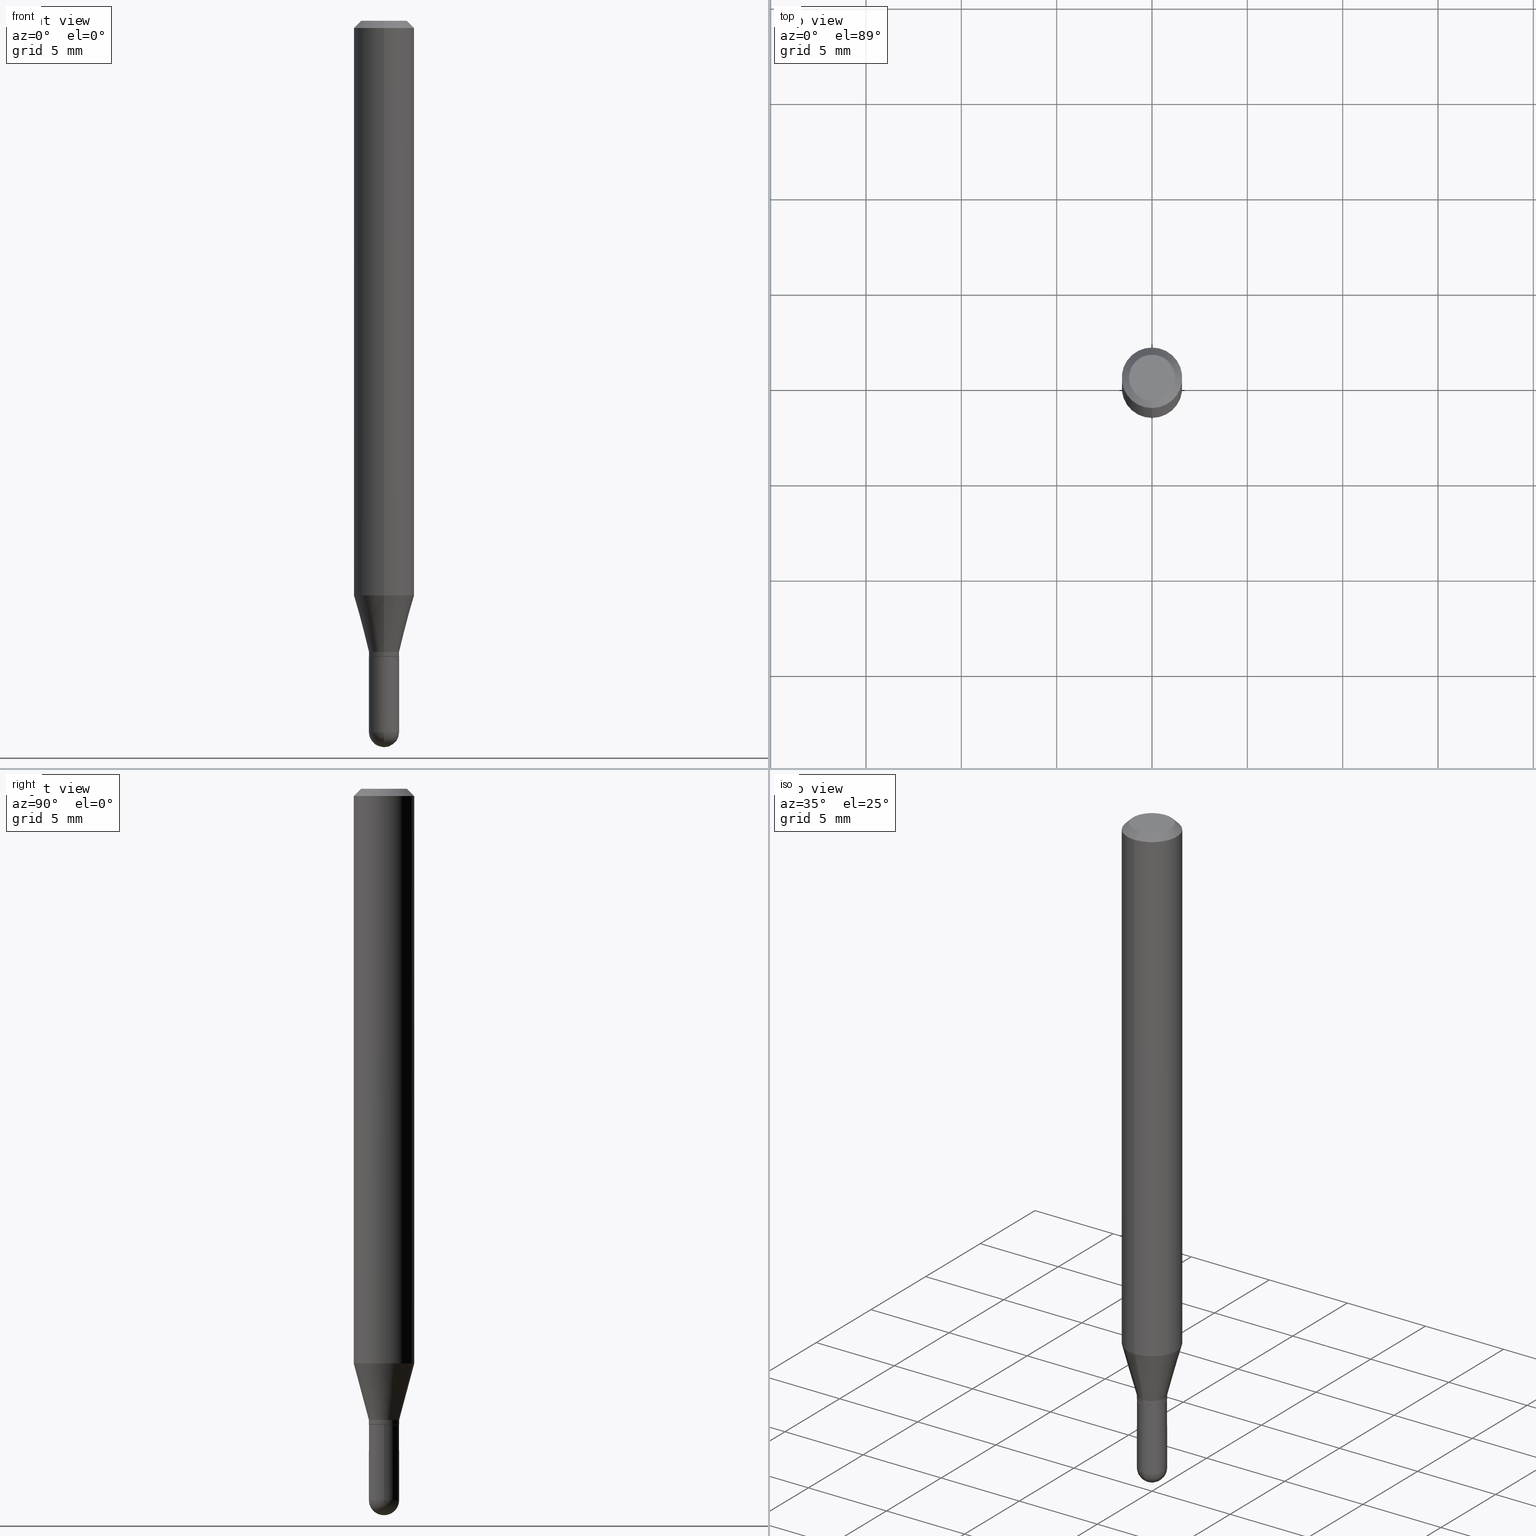
[diagram: canonical four-view strip — front | top / right | iso, engineering-drawing reading convention]
A machine part, canonical four-view strip (front | top / right | iso — engineering-drawing reading convention). The complete STEP part file that produces these views, byte-faithful:
ISO-10303-21;
HEADER;
FILE_DESCRIPTION (( 'STEP AP203' ),
    '1' );
FILE_NAME ('30474.STEP',
    '2024-03-08T15:24:26',
    ( '' ),
    ( '' ),
    'SwSTEP 2.0',
    'SolidWorks 2023',
    '' );
FILE_SCHEMA (( 'CONFIG_CONTROL_DESIGN' ));
ENDSEC;

DATA;
#1 = EDGE_CURVE ( 'NONE', #136, #137, #388, .T. ) ;
#2 = AXIS2_PLACEMENT_3D ( 'NONE', #355, #6, #50 ) ;
#3 = CYLINDRICAL_SURFACE ( 'NONE', #153, 0.06250000000000001388 ) ;
#4 = APPLICATION_CONTEXT ( 'configuration controlled 3d designs of mechanical parts and assemblies' ) ;
#5 = CYLINDRICAL_SURFACE ( 'NONE', #267, 0.03125000000000000000 ) ;
#6 = DIRECTION ( 'NONE',  ( -2.445707618412851174E-29, 3.491139346140710505E-15, 1.000000000000000000 ) ) ;
#7 = EDGE_LOOP ( 'NONE', ( #376, #246 ) ) ;
#8 = DIRECTION ( 'NONE',  ( -6.982962677686265922E-15, -1.000000000000000000, 0.000000000000000000 ) ) ;
#9 = CARTESIAN_POINT ( 'NONE',  ( 3.591782309084418816E-29, -5.128113216425869865E-15, -1.468750000000000000 ) ) ;
#10 = ORIENTED_EDGE ( 'NONE', *, *, #66, .F. ) ;
#11 = EDGE_CURVE ( 'NONE', #165, #383, #328, .T. ) ;
#12 = CIRCLE ( 'NONE', #86, 0.06250000000000000000 ) ;
#13 = DIRECTION ( 'NONE',  ( -2.445707618412851174E-29, 3.491139346140710505E-15, 1.000000000000000000 ) ) ;
#14 = ORGANIZATION ( 'UNSPECIFIED', 'UNSPECIFIED', '' ) ;
#15 = ADVANCED_FACE ( 'NONE', ( #500 ), #433, .T. ) ;
#16 = ORIENTED_EDGE ( 'NONE', *, *, #77, .F. ) ;
#17 = CARTESIAN_POINT ( 'NONE',  ( 3.211214102976074369E-29, -4.583865961482754014E-15, -1.313000000000000389 ) ) ;
#18 = ORIENTED_EDGE ( 'NONE', *, *, #157, .F. ) ;
#19 =( NAMED_UNIT ( * ) SI_UNIT ( $, .STERADIAN. ) SOLID_ANGLE_UNIT ( ) );
#20 = ORIENTED_EDGE ( 'NONE', *, *, #53, .T. ) ;
#21 = ADVANCED_FACE ( 'NONE', ( #147 ), #305, .F. ) ;
#22 = VECTOR ( 'NONE', #463, 39.37007874015748143 ) ;
#23 = AXIS2_PLACEMENT_3D ( 'NONE', #9, #481, #478 ) ;
#24 = EDGE_LOOP ( 'NONE', ( #482, #30, #252, #205 ) ) ;
#25 = DATE_AND_TIME ( #215, #134 ) ;
#26 = PRODUCT_RELATED_PRODUCT_CATEGORY ( 'detail', '', ( #38 ) ) ;
#27 = FACE_OUTER_BOUND ( 'NONE', #129, .T. ) ;
#28 = ADVANCED_FACE ( 'NONE', ( #505 ), #132, .T. ) ;
#29 = CARTESIAN_POINT ( 'NONE',  ( 0.03125000000000000000, -4.802532581578746433E-15, -1.313000000000000167 ) ) ;
#30 = ORIENTED_EDGE ( 'NONE', *, *, #311, .T. ) ;
#31 = APPROVAL_STATUS ( 'not_yet_approved' ) ;
#32 = LINE ( 'NONE', #184, #329 ) ;
#33 = CLOSED_SHELL ( 'NONE', ( #326, #496, #196, #292, #432 ) ) ;
#34 = AXIS2_PLACEMENT_3D ( 'NONE', #108, #348, #506 ) ;
#35 = AXIS2_PLACEMENT_3D ( 'NONE', #494, #487, #130 ) ;
#36 = ORIENTED_EDGE ( 'NONE', *, *, #80, .T. ) ;
#37 = CARTESIAN_POINT ( 'NONE',  ( -4.364351673553913736E-16, -0.06250000000000006939, -0.01500000000000056496 ) ) ;
#39 = DIRECTION ( 'NONE',  ( -2.445707618412850893E-29, 3.491139346140710505E-15, 1.000000000000000000 ) ) ;
#38 = PRODUCT ( '30474', '30474', '', ( #258 ) ) ;
#40 = DIRECTION ( 'NONE',  ( 1.839019923739601104E-15, 0.2588190451025250693, 0.9659258262890670910 ) ) ;
#41 = DIRECTION ( 'NONE',  ( -6.982962677686265922E-15, -1.000000000000000000, 3.491139346140710900E-15 ) ) ;
#42 = CARTESIAN_POINT ( 'NONE',  ( 3.591782309084418816E-29, -5.128113216425869865E-15, -1.468750000000000000 ) ) ;
#43 = VECTOR ( 'NONE', #275, 39.37007874015748143 ) ;
#44 = EDGE_CURVE ( 'NONE', #449, #165, #74, .T. ) ;
#45 = CARTESIAN_POINT ( 'NONE',  ( 3.209991249166868059E-29, -4.582120391809683524E-15, -1.312500000000000222 ) ) ;
#46 = CARTESIAN_POINT ( 'NONE',  ( 3.210900542521084585E-29, -4.584314997901050598E-15, -1.313000000000000167 ) ) ;
#47 = AXIS2_PLACEMENT_3D ( 'NONE', #64, #458, #106 ) ;
#48 = CIRCLE ( 'NONE', #371, 0.04750000000000004219 ) ;
#49 = CARTESIAN_POINT ( 'NONE',  ( 0.000000000000000000, 0.000000000000000000, 0.000000000000000000 ) ) ;
#50 = DIRECTION ( 'NONE',  ( -6.982962677686265922E-15, -1.000000000000000000, 0.000000000000000000 ) ) ;
#51 = ADVANCED_FACE ( 'NONE', ( #467 ), #370, .T. ) ;
#52 = VERTEX_POINT ( 'NONE', #493 ) ;
#53 = EDGE_CURVE ( 'NONE', #76, #452, #303, .T. ) ;
#54 = ORIENTED_EDGE ( 'NONE', *, *, #314, .T. ) ;
#55 = CIRCLE ( 'NONE', #115, 0.03125000000000019429 ) ;
#56 = AXIS2_PLACEMENT_3D ( 'NONE', #17, #446, #443 ) ;
#57 = ORIENTED_EDGE ( 'NONE', *, *, #148, .F. ) ;
#58 = ADVANCED_FACE ( 'NONE', ( #27 ), #100, .T. ) ;
#59 = ORIENTED_EDGE ( 'NONE', *, *, #441, .T. ) ;
#60 = CARTESIAN_POINT ( 'NONE',  ( 2.220446049250678915E-16, 0.03124999999999497277, -1.468750000000000000 ) ) ;
#61 = DIRECTION ( 'NONE',  ( 6.982962677686265922E-15, 1.000000000000000000, -3.483106191921934765E-15 ) ) ;
#62 = PERSON_AND_ORGANIZATION_ROLE ( 'creator' ) ;
#63 = AXIS2_PLACEMENT_3D ( 'NONE', #161, #247, #245 ) ;
#64 = CARTESIAN_POINT ( 'NONE',  ( 3.589109914430733577E-29, -5.131940237673205338E-15, -1.468750000000000000 ) ) ;
#65 = CARTESIAN_POINT ( 'NONE',  ( 4.440892098500919026E-16, 0.06249999999999997224, -0.01500000000000100038 ) ) ;
#66 = EDGE_CURVE ( 'NONE', #137, #136, #457, .T. ) ;
#67 = EDGE_LOOP ( 'NONE', ( #290, #424, #318, #186 ) ) ;
#68 = COORDINATED_UNIVERSAL_TIME_OFFSET ( 5, 0, .BEHIND. ) ;
#69 = CARTESIAN_POINT ( 'NONE',  ( -2.182175836776606071E-16, -0.03125000000000523193, -1.468750000000000000 ) ) ;
#70 = CC_DESIGN_PERSON_AND_ORGANIZATION_ASSIGNMENT ( #135, #62, ( #511 ) ) ;
#71 = EDGE_LOOP ( 'NONE', ( #344, #59, #260, #91, #398 ) ) ;
#72 = DATE_AND_TIME ( #413, #459 ) ;
#73 = CARTESIAN_POINT ( 'NONE',  ( 2.182175836777279315E-16, 0.03124999999999541686, -1.313000000000000167 ) ) ;
#74 = CIRCLE ( 'NONE', #47, 0.03125000000000019429 ) ;
#75 = VECTOR ( 'NONE', #160, 39.37007874015748143 ) ;
#76 = VERTEX_POINT ( 'NONE', #191 ) ;
#77 = EDGE_CURVE ( 'NONE', #163, #367, #103, .T. ) ;
#78 = DIRECTION ( 'NONE',  ( -2.445468806185136877E-29, 3.491481338843145188E-15, 1.000000000000000000 ) ) ;
#79 = CARTESIAN_POINT ( 'NONE',  ( 3.668561427619468125E-31, -5.236709019211339271E-17, -0.01500000000000078354 ) ) ;
#80 = EDGE_CURVE ( 'NONE', #372, #163, #133, .T. ) ;
#81 = COORDINATED_UNIVERSAL_TIME_OFFSET ( 5, 0, .BEHIND. ) ;
#82 = DIRECTION ( 'NONE',  ( -2.445707618412851174E-29, 3.491139346140710505E-15, 1.000000000000000000 ) ) ;
#83 = CARTESIAN_POINT ( 'NONE',  ( -4.364351673553628267E-16, -0.06250000000000416334, -1.186373412263473703 ) ) ;
#84 = CC_DESIGN_PERSON_AND_ORGANIZATION_ASSIGNMENT ( #176, #155, ( #342 ) ) ;
#85 = CARTESIAN_POINT ( 'NONE',  ( 3.330669073875781221E-16, 0.03124999999999564237, -1.302999999999999936 ) ) ;
#86 = AXIS2_PLACEMENT_3D ( 'NONE', #268, #386, #501 ) ;
#87 = MANIFOLD_SOLID_BREP ( 'Body-Move/Copy2[1]', #33 ) ;
#88 = CARTESIAN_POINT ( 'NONE',  ( 3.589109914430733577E-29, -5.131940237673205338E-15, -1.468750000000000000 ) ) ;
#89 = EDGE_CURVE ( 'NONE', #163, #372, #425, .T. ) ;
#90 = CARTESIAN_POINT ( 'NONE',  ( 3.664194617297177037E-29, -5.242962540135721781E-15, -1.500000000000000222 ) ) ;
#91 = ORIENTED_EDGE ( 'NONE', *, *, #226, .F. ) ;
#92 = FACE_OUTER_BOUND ( 'NONE', #333, .T. ) ;
#93 = EDGE_LOOP ( 'NONE', ( #335, #170 ) ) ;
#94 = ORIENTED_EDGE ( 'NONE', *, *, #308, .T. ) ;
#95 = CIRCLE ( 'NONE', #194, 0.03125000000000019429 ) ;
#96 = APPROVAL_DATE_TIME ( #429, #415 ) ;
#97 = ORIENTED_EDGE ( 'NONE', *, *, #476, .T. ) ;
#98 = ORIENTED_EDGE ( 'NONE', *, *, #274, .T. ) ;
#99 = CALENDAR_DATE ( 2024, 8, 3 ) ;
#100 = CYLINDRICAL_SURFACE ( 'NONE', #321, 0.03125000000000019429 ) ;
#101 = APPROVAL_PERSON_ORGANIZATION ( #325, #485, #453 ) ;
#102 = EDGE_LOOP ( 'NONE', ( #168, #217, #387, #479 ) ) ;
#103 = LINE ( 'NONE', #351, #164 ) ;
#104 = CARTESIAN_POINT ( 'NONE',  ( 3.668561427619468125E-31, -5.236709019211339271E-17, -0.01500000000000078354 ) ) ;
#105 = PLANE ( 'NONE',  #434 ) ;
#106 = DIRECTION ( 'NONE',  ( -6.982962677686265922E-15, -1.000000000000000000, 0.000000000000000000 ) ) ;
#107 = PERSON_AND_ORGANIZATION ( #301, #14 ) ;
#108 = CARTESIAN_POINT ( 'NONE',  ( 3.209991249166868059E-29, -4.582120391809683524E-15, -1.312500000000000222 ) ) ;
#109 = AXIS2_PLACEMENT_3D ( 'NONE', #173, #331, #491 ) ;
#110 = CARTESIAN_POINT ( 'NONE',  ( 3.668561427619468125E-31, -5.236709019211339271E-17, -0.01500000000000078354 ) ) ;
#111 = APPLICATION_PROTOCOL_DEFINITION ( 'international standard', 'config_control_design', 1994, #198 ) ;
#112 = DIRECTION ( 'NONE',  ( -6.982962677686265922E-15, -1.000000000000000000, 0.000000000000000000 ) ) ;
#113 = CC_DESIGN_DATE_AND_TIME_ASSIGNMENT ( #72, #220, ( #241 ) ) ;
#114 = CARTESIAN_POINT ( 'NONE',  ( -4.364351673553916694E-16, -0.06250000000000001388, 2.181962091337944559E-16 ) ) ;
#115 = AXIS2_PLACEMENT_3D ( 'NONE', #190, #460, #345 ) ;
#116 = FACE_OUTER_BOUND ( 'NONE', #212, .T. ) ;
#117 = ORIENTED_EDGE ( 'NONE', *, *, #339, .F. ) ;
#118 = DIRECTION ( 'NONE',  ( -6.982962677686265133E-15, -1.000000000000000000, 3.491139346140709322E-15 ) ) ;
#119 = DIRECTION ( 'NONE',  ( 1.000000000000000000, -6.982962677686262766E-15, 0.000000000000000000 ) ) ;
#120 = PLANE ( 'NONE',  #63 ) ;
#121 = ORIENTED_EDGE ( 'NONE', *, *, #238, .T. ) ;
#122 = AXIS2_PLACEMENT_3D ( 'NONE', #146, #82, #112 ) ;
#123 = APPROVAL_PERSON_ORGANIZATION ( #107, #503, #229 ) ;
#124 = DIRECTION ( 'NONE',  ( 1.000000000000000000, -6.982962677686266711E-15, 4.876176775795935793E-29 ) ) ;
#125 = CARTESIAN_POINT ( 'NONE',  ( 3.840629472727450339E-16, 0.04750000000000004219, -9.492000972570193079E-16 ) ) ;
#126 = ORIENTED_EDGE ( 'NONE', *, *, #272, .T. ) ;
#127 = CARTESIAN_POINT ( 'NONE',  ( 2.220446049250639965E-16, 0.03124999999999550360, -1.312500000000000222 ) ) ;
#128 = EDGE_CURVE ( 'NONE', #367, #137, #302, .T. ) ;
#129 = EDGE_LOOP ( 'NONE', ( #131, #94, #399, #324 ) ) ;
#130 = DIRECTION ( 'NONE',  ( 1.000000000000000000, 0.000000000000000000, 0.000000000000000000 ) ) ;
#131 = ORIENTED_EDGE ( 'NONE', *, *, #274, .F. ) ;
#132 = CONICAL_SURFACE ( 'NONE', #423, 0.03125000000000019429, 0.2617993877991502960 ) ;
#133 = CIRCLE ( 'NONE', #362, 0.03125000000000019429 ) ;
#134 = LOCAL_TIME ( 10, 24, 25.00000000000000000, #406 ) ;
#135 = PERSON_AND_ORGANIZATION ( #301, #14 ) ;
#136 = VERTEX_POINT ( 'NONE', #65 ) ;
#137 = VERTEX_POINT ( 'NONE', #37 ) ;
#138 = DIRECTION ( 'NONE',  ( 1.000000000000000000, -6.982962677686265922E-15, 4.883557194083112901E-29 ) ) ;
#139 = CARTESIAN_POINT ( 'NONE',  ( 0.000000000000000000, 0.000000000000000000, 0.000000000000000000 ) ) ;
#140 = AXIS2_PLACEMENT_3D ( 'NONE', #262, #340, #299 ) ;
#141 = AXIS2_PLACEMENT_3D ( 'NONE', #42, #313, #231 ) ;
#142 = CARTESIAN_POINT ( 'NONE',  ( 3.211214102976074369E-29, -4.583865961482754014E-15, -1.313000000000000389 ) ) ;
#143 = APPLICATION_PROTOCOL_DEFINITION ( 'international standard', 'config_control_design', 1994, #4 ) ;
#144 = DIRECTION ( 'NONE',  ( -6.982962677686265922E-15, -1.000000000000000000, 0.000000000000000000 ) ) ;
#145 = COORDINATED_UNIVERSAL_TIME_OFFSET ( 5, 0, .BEHIND. ) ;
#146 = CARTESIAN_POINT ( 'NONE',  ( 3.186757026791945366E-29, -4.548954568021345804E-15, -1.302999999999999936 ) ) ;
#147 = FACE_OUTER_BOUND ( 'NONE', #93, .T. ) ;
#148 = EDGE_CURVE ( 'NONE', #175, #367, #12, .T. ) ;
#149 = CARTESIAN_POINT ( 'NONE',  ( 2.220446049250645389E-16, 0.03124999999999564584, -1.302999999999999936 ) ) ;
#150 = CARTESIAN_POINT ( 'NONE',  ( 3.186757026791945366E-29, -4.548954568021345804E-15, -1.302999999999999936 ) ) ;
#151 = DESIGN_CONTEXT ( 'detailed design', #198, 'design' ) ;
#152 = LINE ( 'NONE', #357, #43 ) ;
#153 = AXIS2_PLACEMENT_3D ( 'NONE', #49, #213, #317 ) ;
#154 = CIRCLE ( 'NONE', #159, 0.04750000000000004219 ) ;
#155 = PERSON_AND_ORGANIZATION_ROLE ( 'creator' ) ;
#156 = DIRECTION ( 'NONE',  ( -2.445468806185136597E-29, 3.491481338843145583E-15, 1.000000000000000000 ) ) ;
#157 = EDGE_CURVE ( 'NONE', #287, #163, #224, .T. ) ;
#158 = AXIS2_PLACEMENT_3D ( 'NONE', #142, #261, #504 ) ;
#159 = AXIS2_PLACEMENT_3D ( 'NONE', #207, #358, #320 ) ;
#160 = DIRECTION ( 'NONE',  ( -2.445707618412851454E-29, 3.491139346140710505E-15, 1.000000000000000000 ) ) ;
#161 = CARTESIAN_POINT ( 'NONE',  ( 3.316907271900979054E-16, 0.04750000000000004219, -5.575146080993514890E-16 ) ) ;
#162 = EDGE_CURVE ( 'NONE', #189, #287, #422, .T. ) ;
#163 = VERTEX_POINT ( 'NONE', #464 ) ;
#164 = VECTOR ( 'NONE', #343, 39.37007874015748143 ) ;
#165 = VERTEX_POINT ( 'NONE', #69 ) ;
#166 = EDGE_CURVE ( 'NONE', #330, #52, #498, .T. ) ;
#167 = CARTESIAN_POINT ( 'NONE',  ( 0.000000000000000000, 0.000000000000000000, 0.000000000000000000 ) ) ;
#168 = ORIENTED_EDGE ( 'NONE', *, *, #319, .F. ) ;
#169 = FACE_OUTER_BOUND ( 'NONE', #444, .T. ) ;
#170 = ORIENTED_EDGE ( 'NONE', *, *, #311, .F. ) ;
#171 =( CONVERSION_BASED_UNIT ( 'INCH', #334 ) LENGTH_UNIT ( ) NAMED_UNIT ( #216 ) );
#172 = VERTEX_POINT ( 'NONE', #470 ) ;
#173 = CARTESIAN_POINT ( 'NONE',  ( 3.210900542521084585E-29, -4.584314997901050598E-15, -1.313000000000000167 ) ) ;
#174 = CONICAL_SURFACE ( 'NONE', #389, 0.06250000000000001388, 0.7853981633974473908 ) ;
#175 = VERTEX_POINT ( 'NONE', #193 ) ;
#176 = PERSON_AND_ORGANIZATION ( #301, #14 ) ;
#177 = CC_DESIGN_PERSON_AND_ORGANIZATION_ASSIGNMENT ( #332, #251, ( #38 ) ) ;
#178 = ORIENTED_EDGE ( 'NONE', *, *, #319, .T. ) ;
#179 = CARTESIAN_POINT ( 'NONE',  ( 3.186757026791945366E-29, -4.548954568021345804E-15, -1.302999999999999936 ) ) ;
#180 = DIRECTION ( 'NONE',  ( -6.982962677686265922E-15, -1.000000000000000000, 3.483106191921934765E-15 ) ) ;
#181 = SHAPE_DEFINITION_REPRESENTATION ( #338, #408 ) ;
#182 = EDGE_CURVE ( 'NONE', #383, #330, #277, .T. ) ;
#183 = VECTOR ( 'NONE', #40, 39.37007874015748143 ) ;
#184 = CARTESIAN_POINT ( 'NONE',  ( 0.03125000000000000000, -2.182175836776958347E-16, 1.523805242436229935E-30 ) ) ;
#185 =( GEOMETRIC_REPRESENTATION_CONTEXT ( 3 ) GLOBAL_UNCERTAINTY_ASSIGNED_CONTEXT ( ( #469 ) ) GLOBAL_UNIT_ASSIGNED_CONTEXT ( ( #171, #218, #19 ) ) REPRESENTATION_CONTEXT ( 'NONE', 'WORKASPACE' ) );
#186 = ORIENTED_EDGE ( 'NONE', *, *, #166, .F. ) ;
#187 = APPROVAL_DATE_TIME ( #294, #503 ) ;
#188 = DIRECTION ( 'NONE',  ( 2.438088387897960049E-29, -3.491481338843145188E-15, -1.000000000000000000 ) ) ;
#189 = VERTEX_POINT ( 'NONE', #375 ) ;
#190 = CARTESIAN_POINT ( 'NONE',  ( 3.589109914430733577E-29, -5.131940237673205338E-15, -1.468750000000000000 ) ) ;
#191 = CARTESIAN_POINT ( 'NONE',  ( 2.202682480856637938E-16, 0.03074999999999541295, -1.313000000000000389 ) ) ;
#192 = PERSON_AND_ORGANIZATION_ROLE ( 'design_supplier' ) ;
#193 = CARTESIAN_POINT ( 'NONE',  ( 4.440892098500913110E-16, 0.06249999999999582279, -1.186373412263473925 ) ) ;
#194 = AXIS2_PLACEMENT_3D ( 'NONE', #45, #197, #199 ) ;
#195 = LOCAL_TIME ( 10, 24, 25.00000000000000000, #81 ) ;
#196 = ADVANCED_FACE ( 'NONE', ( #427 ), #105, .F. ) ;
#197 = DIRECTION ( 'NONE',  ( -2.445707618412851174E-29, 3.491139346140710505E-15, 1.000000000000000000 ) ) ;
#198 = APPLICATION_CONTEXT ( 'configuration controlled 3d designs of mechanical parts and assemblies' ) ;
#199 = DIRECTION ( 'NONE',  ( -6.982962677686265922E-15, -1.000000000000000000, 0.000000000000000000 ) ) ;
#200 = CARTESIAN_POINT ( 'NONE',  ( 0.000000000000000000, 0.000000000000000000, 0.000000000000000000 ) ) ;
#201 = AXIS2_PLACEMENT_3D ( 'NONE', #104, #378, #180 ) ;
#202 = CIRCLE ( 'NONE', #109, 0.03125000000000000000 ) ;
#203 = CC_DESIGN_APPROVAL ( #503, ( #241 ) ) ;
#204 = FACE_OUTER_BOUND ( 'NONE', #490, .T. ) ;
#205 = ORIENTED_EDGE ( 'NONE', *, *, #308, .F. ) ;
#206 = CC_DESIGN_PERSON_AND_ORGANIZATION_ASSIGNMENT ( #509, #471, ( #241 ) ) ;
#207 = CARTESIAN_POINT ( 'NONE',  ( 1.915896369709344109E-44, -2.734857245021408663E-30, -7.833709783153354406E-16 ) ) ;
#208 = ORIENTED_EDGE ( 'NONE', *, *, #128, .T. ) ;
#209 = CYLINDRICAL_SURFACE ( 'NONE', #309, 0.06250000000000001388 ) ;
#210 = SPHERICAL_SURFACE ( 'NONE', #291, 0.03125000000000019429 ) ;
#211 = AXIS2_PLACEMENT_3D ( 'NONE', #79, #235, #385 ) ;
#212 = EDGE_LOOP ( 'NONE', ( #347, #178 ) ) ;
#213 = DIRECTION ( 'NONE',  ( -2.445707618412851174E-29, 3.491139346140710505E-15, 1.000000000000000000 ) ) ;
#214 = ORIENTED_EDGE ( 'NONE', *, *, #441, .F. ) ;
#215 = CALENDAR_DATE ( 2024, 8, 3 ) ;
#216 = DIMENSIONAL_EXPONENTS ( 1.000000000000000000, 0.000000000000000000, 0.000000000000000000, 0.000000000000000000, 0.000000000000000000, 0.000000000000000000, 0.000000000000000000 ) ;
#217 = ORIENTED_EDGE ( 'NONE', *, *, #339, .T. ) ;
#218 =( NAMED_UNIT ( * ) PLANE_ANGLE_UNIT ( ) SI_UNIT ( $, .RADIAN. ) );
#219 = EDGE_LOOP ( 'NONE', ( #359, #121, #257, #223 ) ) ;
#220 = DATE_TIME_ROLE ( 'classification_date' ) ;
#221 = AXIS2_PLACEMENT_3D ( 'NONE', #46, #244, #119 ) ;
#222 = CARTESIAN_POINT ( 'NONE',  ( 3.589109914430733577E-29, -5.131940237673205338E-15, -1.468750000000000000 ) ) ;
#223 = ORIENTED_EDGE ( 'NONE', *, *, #11, .F. ) ;
#224 = LINE ( 'NONE', #304, #350 ) ;
#225 = ORIENTED_EDGE ( 'NONE', *, *, #11, .T. ) ;
#226 = EDGE_CURVE ( 'NONE', #383, #228, #32, .T. ) ;
#227 = DIRECTION ( 'NONE',  ( 2.445707618412851174E-29, -3.491139346140710505E-15, -1.000000000000000000 ) ) ;
#228 = VERTEX_POINT ( 'NONE', #29 ) ;
#229 = APPROVAL_ROLE ( '' ) ;
#230 = AXIS2_PLACEMENT_3D ( 'NONE', #431, #353, #512 ) ;
#231 = DIRECTION ( 'NONE',  ( 1.000000000000000000, -6.982962677686261189E-15, 0.000000000000000000 ) ) ;
#232 = VECTOR ( 'NONE', #278, 39.37007874015748143 ) ;
#233 = ORIENTED_EDGE ( 'NONE', *, *, #77, .T. ) ;
#234 = DIRECTION ( 'NONE',  ( -2.445707618412851174E-29, 3.491139346140710505E-15, 1.000000000000000000 ) ) ;
#235 = DIRECTION ( 'NONE',  ( -2.445707618412851174E-29, 3.491139346140710505E-15, 1.000000000000000000 ) ) ;
#236 = CALENDAR_DATE ( 2024, 8, 3 ) ;
#237 = CARTESIAN_POINT ( 'NONE',  ( -2.147261023388205582E-16, -0.03075000000000458270, -1.313000000000000389 ) ) ;
#238 = EDGE_CURVE ( 'NONE', #449, #330, #55, .T. ) ;
#239 = EDGE_LOOP ( 'NONE', ( #284, #248, #208, #250 ) ) ;
#240 = AXIS2_PLACEMENT_3D ( 'NONE', #466, #156, #430 ) ;
#241 = SECURITY_CLASSIFICATION ( '', '', #312 ) ;
#242 = EDGE_CURVE ( 'NONE', #367, #175, #402, .T. ) ;
#243 = CYLINDRICAL_SURFACE ( 'NONE', #322, 0.03125000000000000000 ) ;
#244 = DIRECTION ( 'NONE',  ( -2.445468806185136597E-29, 3.491481338843145583E-15, 1.000000000000000000 ) ) ;
#245 = DIRECTION ( 'NONE',  ( 6.982962677686265922E-15, 1.000000000000000000, -3.491139346140710505E-15 ) ) ;
#246 = ORIENTED_EDGE ( 'NONE', *, *, #336, .T. ) ;
#247 = DIRECTION ( 'NONE',  ( 2.445707618412850893E-29, -3.491139346140710505E-15, -1.000000000000000000 ) ) ;
#248 = ORIENTED_EDGE ( 'NONE', *, *, #148, .T. ) ;
#249 = CARTESIAN_POINT ( 'NONE',  ( -0.03125000000000000000, 2.220446049250313081E-16, -1.537167215704658057E-30 ) ) ;
#250 = ORIENTED_EDGE ( 'NONE', *, *, #1, .F. ) ;
#251 = PERSON_AND_ORGANIZATION_ROLE ( 'design_owner' ) ;
#252 = ORIENTED_EDGE ( 'NONE', *, *, #162, .T. ) ;
#253 = ADVANCED_FACE ( 'NONE', ( #416 ), #480, .T. ) ;
#254 = DIRECTION ( 'NONE',  ( -2.445468806185136597E-29, 3.491481338843145583E-15, 1.000000000000000000 ) ) ;
#255 = ADVANCED_FACE ( 'NONE', ( #418 ), #174, .T. ) ;
#256 = ORIENTED_EDGE ( 'NONE', *, *, #89, .F. ) ;
#257 = ORIENTED_EDGE ( 'NONE', *, *, #182, .F. ) ;
#258 = MECHANICAL_CONTEXT ( 'NONE', #4, 'mechanical' ) ;
#259 = EDGE_CURVE ( 'NONE', #372, #175, #377, .T. ) ;
#260 = ORIENTED_EDGE ( 'NONE', *, *, #421, .F. ) ;
#261 = DIRECTION ( 'NONE',  ( -2.445707618412851174E-29, 3.491139346140710505E-15, 1.000000000000000000 ) ) ;
#262 = CARTESIAN_POINT ( 'NONE',  ( 3.591782309084418816E-29, -5.128113216425869865E-15, -1.468750000000000000 ) ) ;
#263 = DIRECTION ( 'NONE',  ( -2.445707618412851454E-29, 3.491139346140710505E-15, 1.000000000000000000 ) ) ;
#264 = CC_DESIGN_DATE_AND_TIME_ASSIGNMENT ( #410, #373, ( #511 ) ) ;
#265 = DIRECTION ( 'NONE',  ( -2.445707618412851174E-29, 3.491139346140710505E-15, 1.000000000000000000 ) ) ;
#266 = CALENDAR_DATE ( 2024, 8, 3 ) ;
#267 = AXIS2_PLACEMENT_3D ( 'NONE', #405, #254, #124 ) ;
#268 = CARTESIAN_POINT ( 'NONE',  ( 2.901522492655228288E-29, -4.141794898768227325E-15, -1.186373412263473703 ) ) ;
#269 = CIRCLE ( 'NONE', #56, 0.03074999999999999956 ) ;
#270 = DIRECTION ( 'NONE',  ( -6.982962677686265922E-15, -1.000000000000000000, 0.000000000000000000 ) ) ;
#271 = COORDINATED_UNIVERSAL_TIME_OFFSET ( 5, 0, .BEHIND. ) ;
#272 = EDGE_CURVE ( 'NONE', #287, #452, #474, .T. ) ;
#273 = CARTESIAN_POINT ( 'NONE',  ( 3.668561427619468125E-31, -5.236709019211339271E-17, -0.01500000000000078354 ) ) ;
#274 = EDGE_CURVE ( 'NONE', #452, #372, #152, .T. ) ;
#275 = DIRECTION ( 'NONE',  ( -2.445707618412851454E-29, 3.491139346140710505E-15, 1.000000000000000000 ) ) ;
#276 = AXIS2_PLACEMENT_3D ( 'NONE', #420, #502, #144 ) ;
#277 = CIRCLE ( 'NONE', #141, 0.03125000000000000694 ) ;
#278 = DIRECTION ( 'NONE',  ( -2.445468806185136877E-29, 3.491481338843145188E-15, 1.000000000000000000 ) ) ;
#279 = ORIENTED_EDGE ( 'NONE', *, *, #128, .F. ) ;
#280 = LINE ( 'NONE', #396, #75 ) ;
#281 = CARTESIAN_POINT ( 'NONE',  ( 4.364351673553921131E-16, 0.06249999999999996531, -0.01500000000000100038 ) ) ;
#282 = CARTESIAN_POINT ( 'NONE',  ( -2.182175836776658333E-16, -0.03125000000000488498, -1.312500000000000222 ) ) ;
#283 = LINE ( 'NONE', #281, #390 ) ;
#284 = ORIENTED_EDGE ( 'NONE', *, *, #314, .F. ) ;
#285 = CARTESIAN_POINT ( 'NONE',  ( -4.287811248607204268E-16, -0.06250000000000006939, -0.01500000000000056496 ) ) ;
#286 = FACE_OUTER_BOUND ( 'NONE', #219, .T. ) ;
#287 = VERTEX_POINT ( 'NONE', #282 ) ;
#288 = CARTESIAN_POINT ( 'NONE',  ( 0.000000000000000000, 0.000000000000000000, 0.000000000000000000 ) ) ;
#289 = ORIENTED_EDGE ( 'NONE', *, *, #242, .T. ) ;
#290 = ORIENTED_EDGE ( 'NONE', *, *, #238, .F. ) ;
#291 = AXIS2_PLACEMENT_3D ( 'NONE', #222, #138, #298 ) ;
#292 = ADVANCED_FACE ( 'NONE', ( #391 ), #393, .T. ) ;
#293 = ORIENTED_EDGE ( 'NONE', *, *, #489, .F. ) ;
#294 = DATE_AND_TIME ( #266, #363 ) ;
#295 = LINE ( 'NONE', #285, #468 ) ;
#296 = APPROVAL_STATUS ( 'not_yet_approved' ) ;
#297 = ORIENTED_EDGE ( 'NONE', *, *, #1, .T. ) ;
#298 = DIRECTION ( 'NONE',  ( -6.982962677686265922E-15, -1.000000000000000000, 0.000000000000000000 ) ) ;
#299 = DIRECTION ( 'NONE',  ( 1.000000000000000000, -6.982962677686261189E-15, 0.000000000000000000 ) ) ;
#300 = VECTOR ( 'NONE', #510, 39.37007874015748143 ) ;
#301 = PERSON ( 'UNSPECIFIED', 'UNSPECIFIED', 'UNSPECIFIED', ('UNSPECIFIED'), ('UNSPECIFIED'), ('UNSPECIFIED') ) ;
#302 = LINE ( 'NONE', #114, #300 ) ;
#303 = LINE ( 'NONE', #455, #22 ) ;
#304 = CARTESIAN_POINT ( 'NONE',  ( -2.182175836776971659E-16, -0.03125000000000019429, 1.090981045668978935E-16 ) ) ;
#305 = PLANE ( 'NONE',  #400 ) ;
#306 = DIRECTION ( 'NONE',  ( -4.937700262164674260E-15, -0.7071067811865632269, 0.7071067811865319186 ) ) ;
#307 = CARTESIAN_POINT ( 'NONE',  ( 3.211214102976074369E-29, -4.583865961482754014E-15, -1.313000000000000389 ) ) ;
#308 = EDGE_CURVE ( 'NONE', #452, #287, #95, .T. ) ;
#309 = AXIS2_PLACEMENT_3D ( 'NONE', #167, #13, #394 ) ;
#310 = DIRECTION ( 'NONE',  ( -6.982962677686265922E-15, -1.000000000000000000, 0.000000000000000000 ) ) ;
#311 = EDGE_CURVE ( 'NONE', #76, #189, #379, .T. ) ;
#312 = SECURITY_CLASSIFICATION_LEVEL ( 'unclassified' ) ;
#313 = DIRECTION ( 'NONE',  ( -2.445468806185136597E-29, 3.491481338843145583E-15, 1.000000000000000000 ) ) ;
#314 = EDGE_CURVE ( 'NONE', #175, #136, #280, .T. ) ;
#315 = AXIS2_PLACEMENT_3D ( 'NONE', #88, #352, #8 ) ;
#316 = FACE_OUTER_BOUND ( 'NONE', #239, .T. ) ;
#317 = DIRECTION ( 'NONE',  ( -6.982962677686265133E-15, -1.000000000000000000, 3.491139346140710505E-15 ) ) ;
#318 = ORIENTED_EDGE ( 'NONE', *, *, #381, .F. ) ;
#319 = EDGE_CURVE ( 'NONE', #369, #495, #48, .T. ) ;
#320 = DIRECTION ( 'NONE',  ( -6.982962677686265133E-15, -1.000000000000000000, 3.491139346140709322E-15 ) ) ;
#321 = AXIS2_PLACEMENT_3D ( 'NONE', #139, #428, #41 ) ;
#322 = AXIS2_PLACEMENT_3D ( 'NONE', #200, #401, #366 ) ;
#323 = ORIENTED_EDGE ( 'NONE', *, *, #89, .T. ) ;
#324 = ORIENTED_EDGE ( 'NONE', *, *, #80, .F. ) ;
#325 = PERSON_AND_ORGANIZATION ( #301, #14 ) ;
#326 = ADVANCED_FACE ( 'NONE', ( #439 ), #5, .T. ) ;
#327 = EDGE_LOOP ( 'NONE', ( #323, #447, #486, #16 ) ) ;
#328 = CIRCLE ( 'NONE', #140, 0.03125000000000000694 ) ;
#329 = VECTOR ( 'NONE', #78, 39.37007874015748143 ) ;
#330 = VERTEX_POINT ( 'NONE', #60 ) ;
#331 = DIRECTION ( 'NONE',  ( -2.445468806185136597E-29, 3.491481338843145583E-15, 1.000000000000000000 ) ) ;
#332 = PERSON_AND_ORGANIZATION ( #301, #14 ) ;
#333 = EDGE_LOOP ( 'NONE', ( #289, #54, #10, #279 ) ) ;
#334 = LENGTH_MEASURE_WITH_UNIT ( LENGTH_MEASURE( 0.02539999999999999897 ), #456 );
#335 = ORIENTED_EDGE ( 'NONE', *, *, #476, .F. ) ;
#336 = EDGE_CURVE ( 'NONE', #172, #228, #202, .T. ) ;
#337 = DIRECTION ( 'NONE',  ( -1.000000000000000000, 6.982962677686265922E-15, -4.876176775795935793E-29 ) ) ;
#338 = PRODUCT_DEFINITION_SHAPE ( 'NONE', 'NONE',  #511 ) ;
#339 = EDGE_CURVE ( 'NONE', #369, #137, #295, .T. ) ;
#340 = DIRECTION ( 'NONE',  ( -2.445468806185136597E-29, 3.491481338843145583E-15, 1.000000000000000000 ) ) ;
#341 = AXIS2_PLACEMENT_3D ( 'NONE', #110, #374, #61 ) ;
#342 = PRODUCT_DEFINITION_FORMATION_WITH_SPECIFIED_SOURCE ( 'ANY', '', #38, .NOT_KNOWN. ) ;
#343 = DIRECTION ( 'NONE',  ( -1.807323732225330928E-15, -0.2588190451025182970, 0.9659258262890689783 ) ) ;
#344 = ORIENTED_EDGE ( 'NONE', *, *, #166, .T. ) ;
#345 = DIRECTION ( 'NONE',  ( 7.105427357601001859E-15, 1.000000000000000000, 0.000000000000000000 ) ) ;
#346 = ADVANCED_FACE ( 'NONE', ( #92 ), #209, .T. ) ;
#347 = ORIENTED_EDGE ( 'NONE', *, *, #489, .T. ) ;
#348 = DIRECTION ( 'NONE',  ( -2.445707618412851174E-29, 3.491139346140710505E-15, 1.000000000000000000 ) ) ;
#349 = PERSON_AND_ORGANIZATION ( #301, #14 ) ;
#350 = VECTOR ( 'NONE', #263, 39.37007874015748143 ) ;
#351 = CARTESIAN_POINT ( 'NONE',  ( -2.182175836776652910E-16, -0.03125000000000474620, -1.302999999999999936 ) ) ;
#352 = DIRECTION ( 'NONE',  ( 1.000000000000000000, -6.982962677686265922E-15, 4.883557194083112901E-29 ) ) ;
#353 = DIRECTION ( 'NONE',  ( -2.445707618412851174E-29, 3.491139346140710505E-15, 1.000000000000000000 ) ) ;
#354 = CARTESIAN_POINT ( 'NONE',  ( -3.773273898774342241E-16, -0.04750000000000004219, -6.175418593736515733E-16 ) ) ;
#355 = CARTESIAN_POINT ( 'NONE',  ( 3.211214102976074369E-29, -4.583865961482754014E-15, -1.313000000000000389 ) ) ;
#356 = EDGE_LOOP ( 'NONE', ( #117, #293, #409, #297 ) ) ;
#357 = CARTESIAN_POINT ( 'NONE',  ( 2.220446049250326886E-16, 0.03125000000000019429, -1.090981045668978935E-16 ) ) ;
#358 = DIRECTION ( 'NONE',  ( -2.445707618412851174E-29, 3.491139346140710505E-15, 1.000000000000000000 ) ) ;
#359 = ORIENTED_EDGE ( 'NONE', *, *, #44, .F. ) ;
#360 = CLOSED_SHELL ( 'NONE', ( #462, #484, #255, #346, #15, #28, #365, #51, #438, #21, #253, #58 ) ) ;
#361 = DIRECTION ( 'NONE',  ( -2.445707618412851174E-29, 3.491139346140710505E-15, 1.000000000000000000 ) ) ;
#362 = AXIS2_PLACEMENT_3D ( 'NONE', #179, #382, #310 ) ;
#363 = LOCAL_TIME ( 10, 24, 25.00000000000000000, #68 ) ;
#364 = ORIENTED_EDGE ( 'NONE', *, *, #336, .F. ) ;
#365 = ADVANCED_FACE ( 'NONE', ( #316 ), #3, .T. ) ;
#366 = DIRECTION ( 'NONE',  ( 1.000000000000000000, -6.982962677686266711E-15, 4.876176775795935793E-29 ) ) ;
#367 = VERTEX_POINT ( 'NONE', #83 ) ;
#368 = APPROVAL_DATE_TIME ( #25, #485 ) ;
#369 = VERTEX_POINT ( 'NONE', #354 ) ;
#370 = CONICAL_SURFACE ( 'NONE', #341, 0.06250000000000001388, 0.7853981633974473908 ) ;
#371 = AXIS2_PLACEMENT_3D ( 'NONE', #475, #473, #118 ) ;
#372 = VERTEX_POINT ( 'NONE', #85 ) ;
#373 = DATE_TIME_ROLE ( 'creation_date' ) ;
#374 = DIRECTION ( 'NONE',  ( 2.445707618412851174E-29, -3.491139346140710505E-15, -1.000000000000000000 ) ) ;
#375 = CARTESIAN_POINT ( 'NONE',  ( -2.147261023388205582E-16, -0.03075000000000458270, -1.313000000000000389 ) ) ;
#376 = ORIENTED_EDGE ( 'NONE', *, *, #421, .T. ) ;
#377 = LINE ( 'NONE', #149, #183 ) ;
#378 = DIRECTION ( 'NONE',  ( -2.445707618412851174E-29, 3.491139346140710505E-15, 1.000000000000000000 ) ) ;
#379 = CIRCLE ( 'NONE', #230, 0.03074999999999999956 ) ;
#380 = CC_DESIGN_SECURITY_CLASSIFICATION ( #241, ( #342 ) ) ;
#381 = EDGE_CURVE ( 'NONE', #52, #165, #507, .T. ) ;
#382 = DIRECTION ( 'NONE',  ( -2.445707618412851174E-29, 3.491139346140710505E-15, 1.000000000000000000 ) ) ;
#383 = VERTEX_POINT ( 'NONE', #392 ) ;
#384 = DIRECTION ( 'NONE',  ( 6.982962677686265922E-15, 1.000000000000000000, -3.483106191921934765E-15 ) ) ;
#385 = DIRECTION ( 'NONE',  ( -6.982962677686265922E-15, -1.000000000000000000, 3.483106191921934765E-15 ) ) ;
#386 = DIRECTION ( 'NONE',  ( -2.445707618412851174E-29, 3.491139346140710505E-15, 1.000000000000000000 ) ) ;
#387 = ORIENTED_EDGE ( 'NONE', *, *, #66, .T. ) ;
#388 = CIRCLE ( 'NONE', #201, 0.06250000000000001388 ) ;
#389 = AXIS2_PLACEMENT_3D ( 'NONE', #273, #227, #384 ) ;
#390 = VECTOR ( 'NONE', #477, 39.37007874015748143 ) ;
#391 = FACE_OUTER_BOUND ( 'NONE', #67, .T. ) ;
#392 = CARTESIAN_POINT ( 'NONE',  ( 0.03125000000000000694, -5.074431690841155672E-15, -1.468750000000000000 ) ) ;
#393 = SPHERICAL_SURFACE ( 'NONE', #315, 0.03125000000000019429 ) ;
#394 = DIRECTION ( 'NONE',  ( -6.982962677686265133E-15, -1.000000000000000000, 3.491139346140710505E-15 ) ) ;
#395 = CC_DESIGN_APPROVAL ( #485, ( #342 ) ) ;
#396 = CARTESIAN_POINT ( 'NONE',  ( 4.440892098500626162E-16, 0.06250000000000001388, -2.181962091337944559E-16 ) ) ;
#397 = LINE ( 'NONE', #249, #232 ) ;
#398 = ORIENTED_EDGE ( 'NONE', *, *, #182, .T. ) ;
#399 = ORIENTED_EDGE ( 'NONE', *, *, #157, .T. ) ;
#400 = AXIS2_PLACEMENT_3D ( 'NONE', #307, #39, #465 ) ;
#401 = DIRECTION ( 'NONE',  ( -2.445468806185136597E-29, 3.491481338843145583E-15, 1.000000000000000000 ) ) ;
#402 = CIRCLE ( 'NONE', #488, 0.06250000000000000000 ) ;
#403 = AXIS2_PLACEMENT_3D ( 'NONE', #288, #361, #448 ) ;
#404 = EDGE_LOOP ( 'NONE', ( #214, #412, #225, #483, #364 ) ) ;
#405 = CARTESIAN_POINT ( 'NONE',  ( 0.000000000000000000, 0.000000000000000000, 0.000000000000000000 ) ) ;
#406 = COORDINATED_UNIVERSAL_TIME_OFFSET ( 5, 0, .BEHIND. ) ;
#407 = ORIENTED_EDGE ( 'NONE', *, *, #162, .F. ) ;
#408 = ADVANCED_BREP_SHAPE_REPRESENTATION ( '30474', ( #87, #435, #35 ), #185 ) ;
#409 = ORIENTED_EDGE ( 'NONE', *, *, #454, .T. ) ;
#410 = DATE_AND_TIME ( #236, #195 ) ;
#411 = VECTOR ( 'NONE', #306, 39.37007874015748143 ) ;
#412 = ORIENTED_EDGE ( 'NONE', *, *, #381, .T. ) ;
#413 = CALENDAR_DATE ( 2024, 8, 3 ) ;
#414 = LOCAL_TIME ( 10, 24, 25.00000000000000000, #271 ) ;
#415 = APPROVAL ( #492, 'UNSPECIFIED' ) ;
#416 = FACE_OUTER_BOUND ( 'NONE', #24, .T. ) ;
#417 = ORIENTED_EDGE ( 'NONE', *, *, #272, .F. ) ;
#418 = FACE_OUTER_BOUND ( 'NONE', #102, .T. ) ;
#419 = CC_DESIGN_PERSON_AND_ORGANIZATION_ASSIGNMENT ( #349, #192, ( #342 ) ) ;
#420 = CARTESIAN_POINT ( 'NONE',  ( 3.186757026791945366E-29, -4.548954568021345804E-15, -1.302999999999999936 ) ) ;
#421 = EDGE_CURVE ( 'NONE', #228, #172, #442, .T. ) ;
#422 = LINE ( 'NONE', #237, #411 ) ;
#423 = AXIS2_PLACEMENT_3D ( 'NONE', #150, #265, #270 ) ;
#424 = ORIENTED_EDGE ( 'NONE', *, *, #44, .T. ) ;
#425 = CIRCLE ( 'NONE', #122, 0.03125000000000019429 ) ;
#426 = APPROVAL_PERSON_ORGANIZATION ( #461, #415, #450 ) ;
#427 = FACE_OUTER_BOUND ( 'NONE', #7, .T. ) ;
#428 = DIRECTION ( 'NONE',  ( -2.445707618412851174E-29, 3.491139346140710505E-15, 1.000000000000000000 ) ) ;
#429 = DATE_AND_TIME ( #99, #414 ) ;
#430 = DIRECTION ( 'NONE',  ( 1.000000000000000000, -6.982962677686261189E-15, 0.000000000000000000 ) ) ;
#431 = CARTESIAN_POINT ( 'NONE',  ( 3.211214102976074369E-29, -4.583865961482754014E-15, -1.313000000000000389 ) ) ;
#432 = ADVANCED_FACE ( 'NONE', ( #436 ), #243, .T. ) ;
#433 = CONICAL_SURFACE ( 'NONE', #276, 0.03125000000000019429, 0.2617993877991502960 ) ;
#434 = AXIS2_PLACEMENT_3D ( 'NONE', #73, #188, #337 ) ;
#435 = MANIFOLD_SOLID_BREP ( 'Body-Move/Copy2[2]', #360 ) ;
#436 = FACE_OUTER_BOUND ( 'NONE', #404, .T. ) ;
#437 = EDGE_LOOP ( 'NONE', ( #451, #36, #233, #57 ) ) ;
#438 = ADVANCED_FACE ( 'NONE', ( #116 ), #120, .F. ) ;
#439 = FACE_OUTER_BOUND ( 'NONE', #71, .T. ) ;
#440 = CYLINDRICAL_SURFACE ( 'NONE', #403, 0.03125000000000019429 ) ;
#441 = EDGE_CURVE ( 'NONE', #52, #172, #397, .T. ) ;
#442 = CIRCLE ( 'NONE', #221, 0.03125000000000000000 ) ;
#443 = DIRECTION ( 'NONE',  ( -6.982962677686265922E-15, -1.000000000000000000, 0.000000000000000000 ) ) ;
#444 = EDGE_LOOP ( 'NONE', ( #97, #20, #417, #407 ) ) ;
#445 = DIRECTION ( 'NONE',  ( -4.851104656540959542E-15, -0.7071067811865493491, -0.7071067811865456854 ) ) ;
#446 = DIRECTION ( 'NONE',  ( -2.445707618412851174E-29, 3.491139346140710505E-15, 1.000000000000000000 ) ) ;
#447 = ORIENTED_EDGE ( 'NONE', *, *, #259, .T. ) ;
#448 = DIRECTION ( 'NONE',  ( -6.982962677686265922E-15, -1.000000000000000000, 3.491139346140710900E-15 ) ) ;
#449 = VERTEX_POINT ( 'NONE', #90 ) ;
#450 = APPROVAL_ROLE ( '' ) ;
#451 = ORIENTED_EDGE ( 'NONE', *, *, #259, .F. ) ;
#452 = VERTEX_POINT ( 'NONE', #127 ) ;
#453 = APPROVAL_ROLE ( '' ) ;
#454 = EDGE_CURVE ( 'NONE', #495, #136, #283, .T. ) ;
#455 = CARTESIAN_POINT ( 'NONE',  ( 2.184918912462628761E-16, 0.03074999999999541295, -1.313000000000000389 ) ) ;
#456 =( LENGTH_UNIT ( ) NAMED_UNIT ( * ) SI_UNIT ( $, .METRE. ) );
#457 = CIRCLE ( 'NONE', #211, 0.06250000000000001388 ) ;
#458 = DIRECTION ( 'NONE',  ( -1.000000000000000000, 6.982962677686265922E-15, -4.883557194083112340E-29 ) ) ;
#459 = LOCAL_TIME ( 10, 24, 25.00000000000000000, #145 ) ;
#460 = DIRECTION ( 'NONE',  ( 1.000000000000000000, -7.105427357601001070E-15, 4.926315508542082329E-29 ) ) ;
#461 = PERSON_AND_ORGANIZATION ( #301, #14 ) ;
#462 = ADVANCED_FACE ( 'NONE', ( #204 ), #440, .T. ) ;
#463 = DIRECTION ( 'NONE',  ( 5.024295867788190974E-15, 0.7071067811865681119, 0.7071067811865270336 ) ) ;
#464 = CARTESIAN_POINT ( 'NONE',  ( -2.182175836776652910E-16, -0.03125000000000474620, -1.302999999999999936 ) ) ;
#465 = DIRECTION ( 'NONE',  ( -6.982962677686265922E-15, -1.000000000000000000, 3.491139346140710505E-15 ) ) ;
#466 = CARTESIAN_POINT ( 'NONE',  ( 3.591782309084418816E-29, -5.128113216425869865E-15, -1.468750000000000000 ) ) ;
#467 = FACE_OUTER_BOUND ( 'NONE', #356, .T. ) ;
#468 = VECTOR ( 'NONE', #445, 39.37007874015748143 ) ;
#469 = UNCERTAINTY_MEASURE_WITH_UNIT (LENGTH_MEASURE( 1.000000000000000082E-05 ), #171, 'distance_accuracy_value', 'NONE');
#470 = CARTESIAN_POINT ( 'NONE',  ( -0.03125000000000000000, -4.634169502238429318E-15, -1.313000000000000167 ) ) ;
#471 = PERSON_AND_ORGANIZATION_ROLE ( 'classification_officer' ) ;
#472 = DIRECTION ( 'NONE',  ( -6.982962677686265922E-15, -1.000000000000000000, 4.370956789862821150E-15 ) ) ;
#473 = DIRECTION ( 'NONE',  ( -2.445707618412851174E-29, 3.491139346140710505E-15, 1.000000000000000000 ) ) ;
#474 = CIRCLE ( 'NONE', #34, 0.03125000000000019429 ) ;
#475 = CARTESIAN_POINT ( 'NONE',  ( 1.915896369709344109E-44, -2.734857245021408663E-30, -7.833709783153354406E-16 ) ) ;
#476 = EDGE_CURVE ( 'NONE', #189, #76, #269, .T. ) ;
#477 = DIRECTION ( 'NONE',  ( 4.937700262164543309E-15, 0.7071067811865444641, -0.7071067811865505703 ) ) ;
#478 = DIRECTION ( 'NONE',  ( 1.000000000000000000, -6.982962677686261189E-15, 0.000000000000000000 ) ) ;
#479 = ORIENTED_EDGE ( 'NONE', *, *, #454, .F. ) ;
#480 = CONICAL_SURFACE ( 'NONE', #158, 0.03074999999999999956, 0.7853981633974739252 ) ;
#481 = DIRECTION ( 'NONE',  ( -2.445468806185136597E-29, 3.491481338843145583E-15, 1.000000000000000000 ) ) ;
#482 = ORIENTED_EDGE ( 'NONE', *, *, #53, .F. ) ;
#483 = ORIENTED_EDGE ( 'NONE', *, *, #226, .T. ) ;
#484 = ADVANCED_FACE ( 'NONE', ( #169 ), #499, .T. ) ;
#485 = APPROVAL ( #296, 'UNSPECIFIED' ) ;
#486 = ORIENTED_EDGE ( 'NONE', *, *, #242, .F. ) ;
#487 = DIRECTION ( 'NONE',  ( 0.000000000000000000, 0.000000000000000000, 1.000000000000000000 ) ) ;
#488 = AXIS2_PLACEMENT_3D ( 'NONE', #497, #234, #472 ) ;
#489 = EDGE_CURVE ( 'NONE', #495, #369, #154, .T. ) ;
#490 = EDGE_LOOP ( 'NONE', ( #126, #98, #256, #18 ) ) ;
#491 = DIRECTION ( 'NONE',  ( 1.000000000000000000, -6.982962677686262766E-15, 0.000000000000000000 ) ) ;
#492 = APPROVAL_STATUS ( 'not_yet_approved' ) ;
#493 = CARTESIAN_POINT ( 'NONE',  ( -0.03125000000000000694, -4.634169502238429318E-15, -1.468750000000000000 ) ) ;
#494 = CARTESIAN_POINT ( 'NONE',  ( 0.000000000000000000, 0.000000000000000000, 0.000000000000000000 ) ) ;
#495 = VERTEX_POINT ( 'NONE', #125 ) ;
#496 = ADVANCED_FACE ( 'NONE', ( #286 ), #210, .T. ) ;
#497 = CARTESIAN_POINT ( 'NONE',  ( 2.901522492655228288E-29, -4.141794898768227325E-15, -1.186373412263473703 ) ) ;
#498 = CIRCLE ( 'NONE', #240, 0.03125000000000000694 ) ;
#499 = CONICAL_SURFACE ( 'NONE', #2, 0.03074999999999999956, 0.7853981633974739252 ) ;
#500 = FACE_OUTER_BOUND ( 'NONE', #327, .T. ) ;
#501 = DIRECTION ( 'NONE',  ( -6.982962677686265922E-15, -1.000000000000000000, 4.370956789862821150E-15 ) ) ;
#502 = DIRECTION ( 'NONE',  ( -2.445707618412851174E-29, 3.491139346140710505E-15, 1.000000000000000000 ) ) ;
#503 = APPROVAL ( #31, 'UNSPECIFIED' ) ;
#504 = DIRECTION ( 'NONE',  ( -6.982962677686265922E-15, -1.000000000000000000, 0.000000000000000000 ) ) ;
#505 = FACE_OUTER_BOUND ( 'NONE', #437, .T. ) ;
#506 = DIRECTION ( 'NONE',  ( -6.982962677686265922E-15, -1.000000000000000000, 0.000000000000000000 ) ) ;
#507 = CIRCLE ( 'NONE', #23, 0.03125000000000000694 ) ;
#508 = CC_DESIGN_APPROVAL ( #415, ( #511 ) ) ;
#509 = PERSON_AND_ORGANIZATION ( #301, #14 ) ;
#510 = DIRECTION ( 'NONE',  ( -2.445707618412851454E-29, 3.491139346140710505E-15, 1.000000000000000000 ) ) ;
#511 = PRODUCT_DEFINITION ( 'UNKNOWN', '', #342, #151 ) ;
#512 = DIRECTION ( 'NONE',  ( -6.982962677686265922E-15, -1.000000000000000000, 0.000000000000000000 ) ) ;
ENDSEC;
END-ISO-10303-21;
